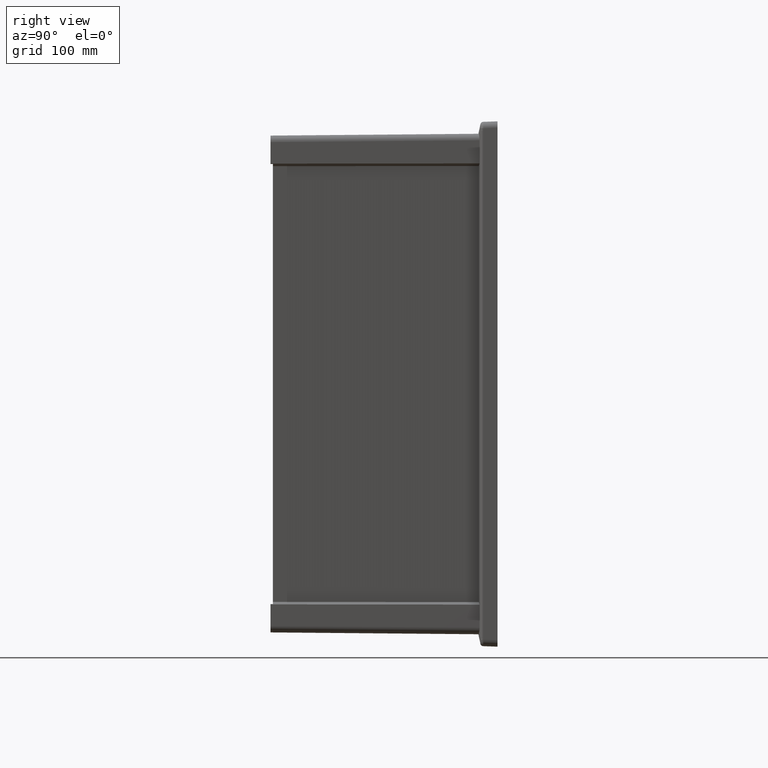
[diagram: clean part render]
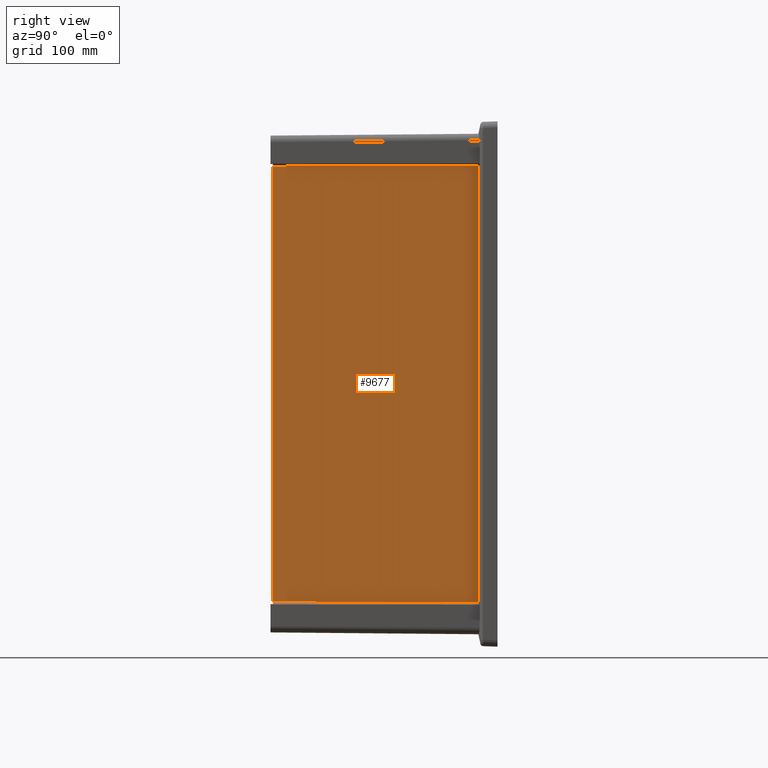
[diagram: same view with one face highlighted and labeled with its STEP entity id]
A machine part, right view. The second image highlights one B-rep face of the part: STEP entity #9677.
In plain terms, the highlighted planar face has unit normal (1, -0.0087, 0).
Its self-contained STEP definition (entity closure, byte-faithful):
#237 = EDGE_LOOP ( 'NONE', ( #2101, #383, #3945, #10006 ) ) ;
#383 = ORIENTED_EDGE ( 'NONE', *, *, #11734, .F. ) ;
#777 = VECTOR ( 'NONE', #794, 1000.000000000000000 ) ;
#794 = DIRECTION ( 'NONE',  ( -0.0000000000000000000, 0.0000000000000000000, 1.000000000000000000 ) ) ;
#967 = CARTESIAN_POINT ( 'NONE',  ( 183.3627089512969800, -15.73199594573909000, 183.8301939186427500 ) ) ;
#1159 = DIRECTION ( 'NONE',  ( -0.008726531827785101800, -0.9999615024563482900, -0.0009171954542809313300 ) ) ;
#1680 = LINE ( 'NONE', #2352, #7006 ) ;
#2101 = ORIENTED_EDGE ( 'NONE', *, *, #10737, .T. ) ;
#2352 = CARTESIAN_POINT ( 'NONE',  ( 183.3627089512969500, -15.73199594573909400, -208.5000000000000300 ) ) ;
#2675 = DIRECTION ( 'NONE',  ( -0.008726531827785098300, -0.9999615024563482900, 0.0009171954542810902700 ) ) ;
#3064 = VERTEX_POINT ( 'NONE', #12201 ) ;
#3487 = CARTESIAN_POINT ( 'NONE',  ( 181.8471312404304600, -189.4000000000000100, -183.6480934951732400 ) ) ;
#3945 = ORIENTED_EDGE ( 'NONE', *, *, #13810, .F. ) ;
#3978 = AXIS2_PLACEMENT_3D ( 'NONE', #8675, #10796, #11931 ) ;
#3980 = LINE ( 'NONE', #13461, #12352 ) ;
#4488 = EDGE_CURVE ( 'NONE', #3064, #7184, #1680, .T. ) ;
#4761 = LINE ( 'NONE', #14103, #13106 ) ;
#6454 = LINE ( 'NONE', #13846, #777 ) ;
#6507 = PLANE ( 'NONE',  #3978 ) ;
#7006 = VECTOR ( 'NONE', #7672, 1000.000000000000000 ) ;
#7184 = VERTEX_POINT ( 'NONE', #967 ) ;
#7459 = VERTEX_POINT ( 'NONE', #11628 ) ;
#7672 = DIRECTION ( 'NONE',  ( -0.0000000000000000000, -0.0000000000000000000, 1.000000000000000000 ) ) ;
#8675 = CARTESIAN_POINT ( 'NONE',  ( 183.5000000000001700, 0.0000000000000000000, -208.5000000000000300 ) ) ;
#9445 = VERTEX_POINT ( 'NONE', #3487 ) ;
#9677 = ADVANCED_FACE ( 'NONE', ( #11784 ), #6507, .T. ) ;
#10006 = ORIENTED_EDGE ( 'NONE', *, *, #4488, .T. ) ;
#10737 = EDGE_CURVE ( 'NONE', #7184, #7459, #4761, .T. ) ;
#10796 = DIRECTION ( 'NONE',  ( 0.9999619230641713100, -0.008726535498373953800, 0.0000000000000000000 ) ) ;
#11628 = CARTESIAN_POINT ( 'NONE',  ( 181.8471312404304600, -189.4000000000000100, 183.6709002823559400 ) ) ;
#11734 = EDGE_CURVE ( 'NONE', #9445, #7459, #6454, .T. ) ;
#11784 = FACE_OUTER_BOUND ( 'NONE', #237, .T. ) ;
#11931 = DIRECTION ( 'NONE',  ( 0.008726535498373953800, 0.9999619230641713100, 0.0000000000000000000 ) ) ;
#12201 = CARTESIAN_POINT ( 'NONE',  ( 183.3627089512969500, -15.73199594573909400, -183.8073871314593900 ) ) ;
#12352 = VECTOR ( 'NONE', #2675, 999.9999999999998900 ) ;
#13106 = VECTOR ( 'NONE', #1159, 999.9999999999998900 ) ;
#13461 = CARTESIAN_POINT ( 'NONE',  ( 4546.933895379407700, 500000.0000000000600, -642.4371997084026600 ) ) ;
#13810 = EDGE_CURVE ( 'NONE', #3064, #9445, #3980, .T. ) ;
#13846 = CARTESIAN_POINT ( 'NONE',  ( 181.8471312404304600, -189.4000000000000100, -208.5000000000000300 ) ) ;
#14103 = CARTESIAN_POINT ( 'NONE',  ( 4546.933895379408600, 500000.0000000000600, 642.4600064955059200 ) ) ;